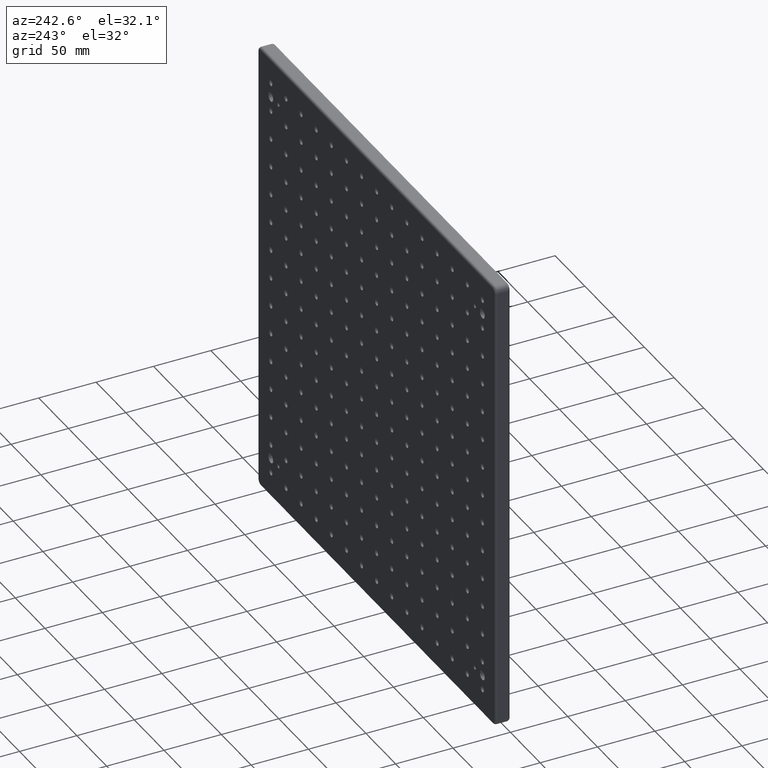
[diagram: clean part render]
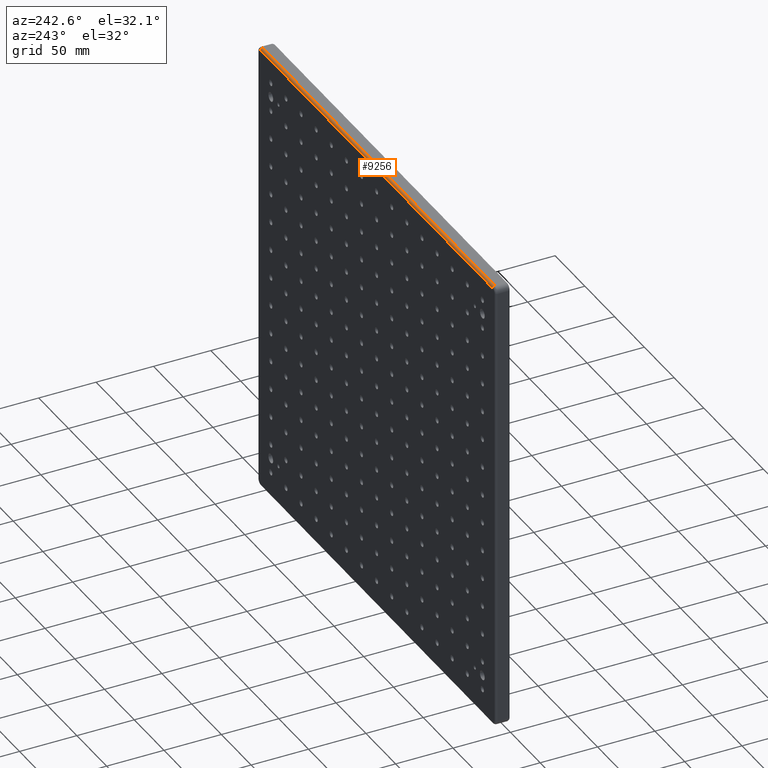
[diagram: same view with one face highlighted and labeled with its STEP entity id]
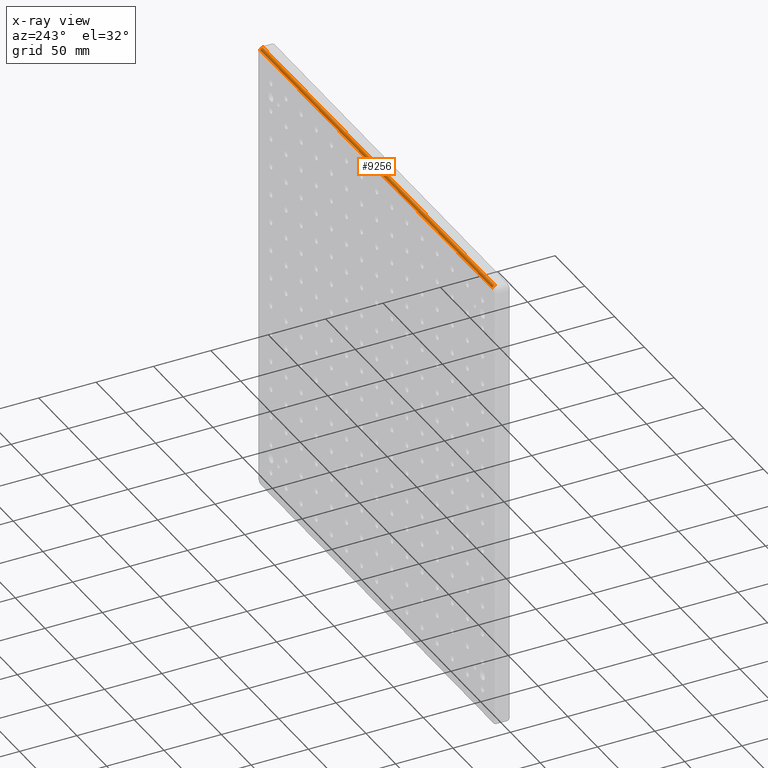
[diagram: x-ray of the same camera — body ghosted, the highlighted face saturated]
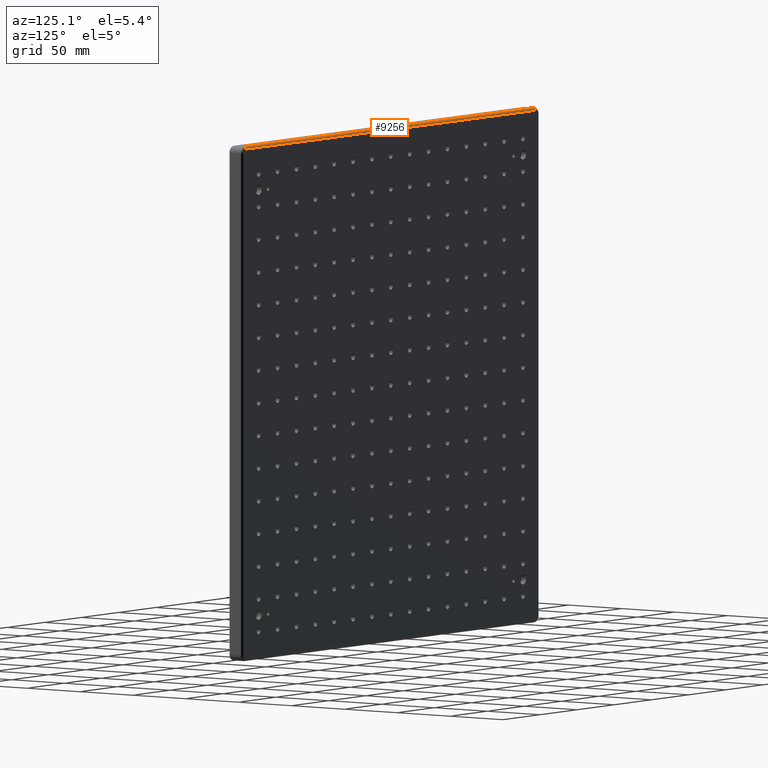
[diagram: same view with one face highlighted and labeled with its STEP entity id]
A machine part, auxiliary view. The second image highlights one B-rep face of the part: STEP entity #9256.
The next image is the same camera in x-ray: the body ghosted, the highlighted face saturated — about 0% of this face is hidden behind the body in this view.
A second angle (auxiliary view) of the same face is appended — the face is thin or edge-on in the first view.
In plain terms, the highlighted cylindrical surface (edge-blend (fillet) strip) has radius 2 mm, axis along (-1, 0, 0).
Its self-contained STEP definition (entity closure, byte-faithful):
#265 = CARTESIAN_POINT ( 'NONE',  ( 195.0000000000000000, 11.00000000000000000, 199.9999999999999400 ) ) ;
#627 = FACE_OUTER_BOUND ( 'NONE', #13716, .T. ) ;
#906 = EDGE_CURVE ( 'NONE', #5076, #9157, #12296, .T. ) ;
#1076 = DIRECTION ( 'NONE',  ( 0.0000000000000000000, 0.0000000000000000000, 1.000000000000000000 ) ) ;
#1555 = CARTESIAN_POINT ( 'NONE',  ( 195.0000000000000000, 13.00000000000000000, 197.9999999999999400 ) ) ;
#2449 = DIRECTION ( 'NONE',  ( -1.000000000000000000, 0.0000000000000000000, 1.423362852083534100E-016 ) ) ;
#2455 = VECTOR ( 'NONE', #15986, 1000.000000000000000 ) ;
#2950 = DIRECTION ( 'NONE',  ( -1.000000000000000000, 0.0000000000000000000, 0.0000000000000000000 ) ) ;
#3077 = EDGE_CURVE ( 'NONE', #15778, #13891, #14765, .T. ) ;
#5076 = VERTEX_POINT ( 'NONE', #8749 ) ;
#5093 = AXIS2_PLACEMENT_3D ( 'NONE', #11491, #2950, #12904 ) ;
#5301 = CARTESIAN_POINT ( 'NONE',  ( -194.9999999999999400, 11.00000000000000000, 198.0000000000000000 ) ) ;
#5305 = ORIENTED_EDGE ( 'NONE', *, *, #9966, .F. ) ;
#8448 = ORIENTED_EDGE ( 'NONE', *, *, #17921, .F. ) ;
#8749 = CARTESIAN_POINT ( 'NONE',  ( -194.9999999999999400, 11.00000000000000000, 200.0000000000000000 ) ) ;
#9031 = AXIS2_PLACEMENT_3D ( 'NONE', #5301, #2449, #1076 ) ;
#9070 = DIRECTION ( 'NONE',  ( -1.000000000000000000, 0.0000000000000000000, 0.0000000000000000000 ) ) ;
#9157 = VERTEX_POINT ( 'NONE', #11760 ) ;
#9163 = AXIS2_PLACEMENT_3D ( 'NONE', #10728, #9070, #16081 ) ;
#9256 = ADVANCED_FACE ( 'NONE', ( #627 ), #17448, .T. ) ;
#9576 = DIRECTION ( 'NONE',  ( -1.000000000000000000, -0.0000000000000000000, 1.423362852083534100E-016 ) ) ;
#9723 = LINE ( 'NONE', #11112, #15205 ) ;
#9966 = EDGE_CURVE ( 'NONE', #15778, #5076, #9723, .T. ) ;
#10213 = ORIENTED_EDGE ( 'NONE', *, *, #3077, .T. ) ;
#10648 = LINE ( 'NONE', #16955, #2455 ) ;
#10728 = CARTESIAN_POINT ( 'NONE',  ( -194.9999999999999400, 11.00000000000000000, 198.0000000000000000 ) ) ;
#11112 = CARTESIAN_POINT ( 'NONE',  ( -194.9999999999999400, 11.00000000000000000, 200.0000000000000000 ) ) ;
#11491 = CARTESIAN_POINT ( 'NONE',  ( 195.0000000000000000, 11.00000000000000000, 197.9999999999999400 ) ) ;
#11760 = CARTESIAN_POINT ( 'NONE',  ( -194.9999999999999400, 13.00000000000000000, 198.0000000000000000 ) ) ;
#12296 = CIRCLE ( 'NONE', #9163, 2.000000000000001800 ) ;
#12904 = DIRECTION ( 'NONE',  ( 0.0000000000000000000, 0.0000000000000000000, 1.000000000000000000 ) ) ;
#13716 = EDGE_LOOP ( 'NONE', ( #10213, #8448, #17413, #5305 ) ) ;
#13891 = VERTEX_POINT ( 'NONE', #1555 ) ;
#14765 = CIRCLE ( 'NONE', #5093, 2.000000000000001800 ) ;
#15205 = VECTOR ( 'NONE', #9576, 1000.000000000000000 ) ;
#15778 = VERTEX_POINT ( 'NONE', #265 ) ;
#15986 = DIRECTION ( 'NONE',  ( 1.000000000000000000, 0.0000000000000000000, -1.423362852083534100E-016 ) ) ;
#16081 = DIRECTION ( 'NONE',  ( 0.0000000000000000000, 0.0000000000000000000, 1.000000000000000000 ) ) ;
#16955 = CARTESIAN_POINT ( 'NONE',  ( 195.0000000000000000, 13.00000000000000000, 197.9999999999999400 ) ) ;
#17413 = ORIENTED_EDGE ( 'NONE', *, *, #906, .F. ) ;
#17448 = CYLINDRICAL_SURFACE ( 'NONE', #9031, 2.000000000000001800 ) ;
#17921 = EDGE_CURVE ( 'NONE', #9157, #13891, #10648, .T. ) ;